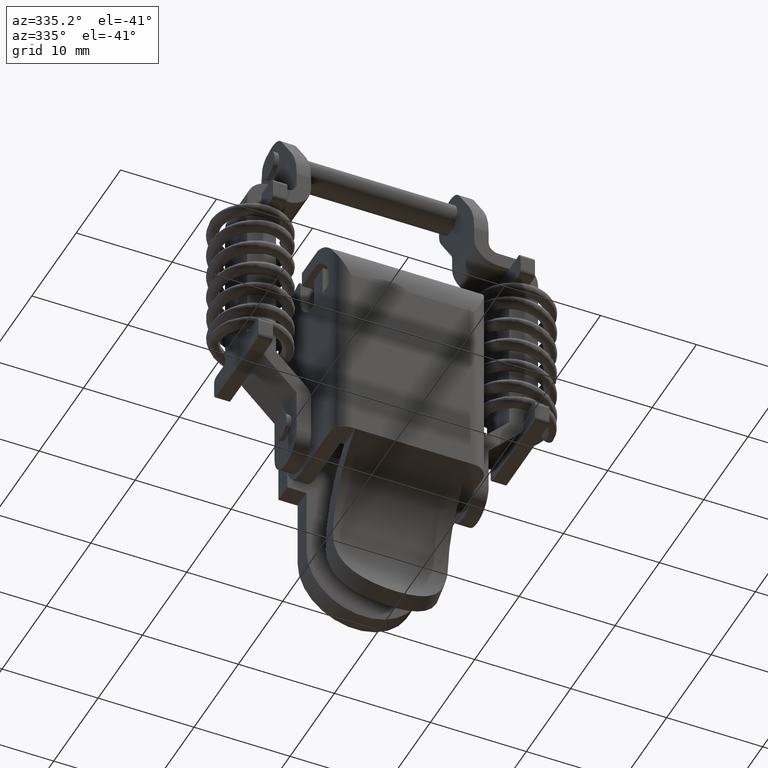
[diagram: clean part render]
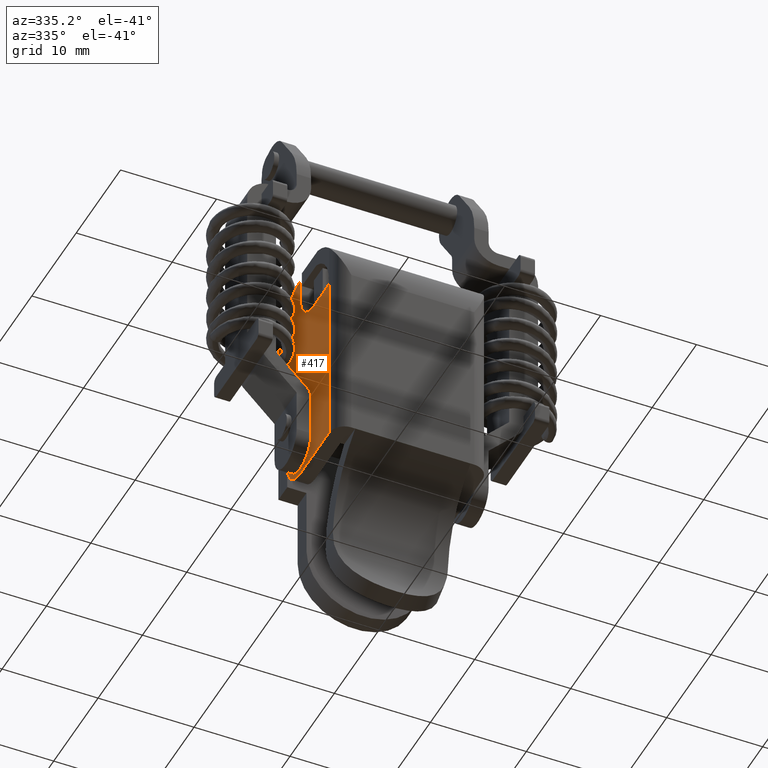
[diagram: same view with one face highlighted and labeled with its STEP entity id]
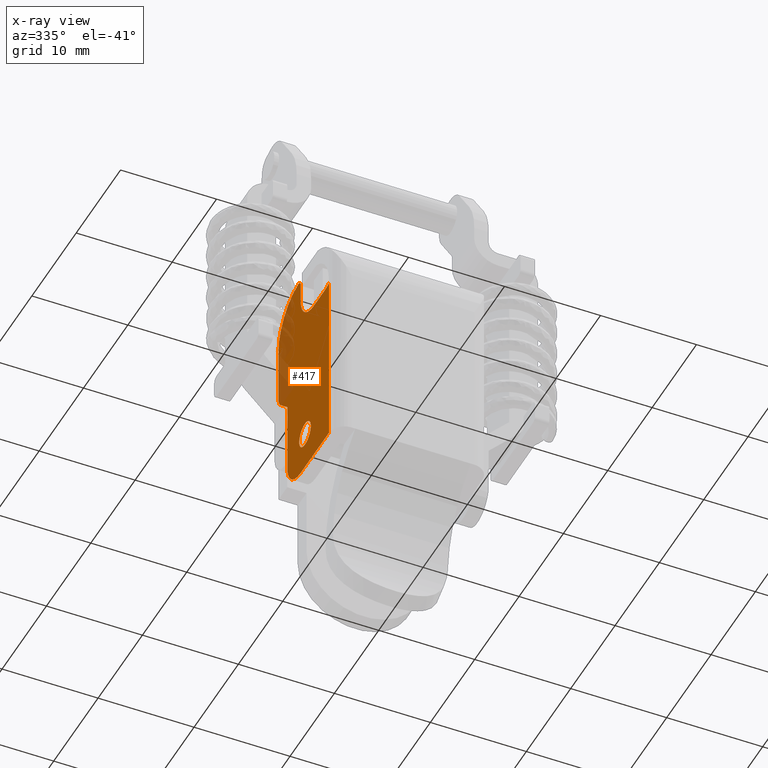
[diagram: x-ray of the same camera — body ghosted, the highlighted face saturated]
A machine part, auxiliary view. The second image highlights one B-rep face of the part: STEP entity #417.
The next image is the same camera in x-ray: the body ghosted, the highlighted face saturated — about 14% of this face is hidden behind the body in this view.
In plain terms, the highlighted planar face has unit normal (1, 0, 0).
Its self-contained STEP definition (entity closure, byte-faithful):
#417=ADVANCED_FACE('',(#2065,#2066),#2064,.F.);
#2064=PLANE('',#3498);
#2065=FACE_OUTER_BOUND('',#3499,.T.);
#2066=FACE_BOUND('',#3500,.T.);
#3495=CARTESIAN_POINT('',(-8.00000000000E+00,-7.23108641419E+00,1.74426824431E+00));
#3496=DIRECTION('',(1.00000000000E+00,0.00000000000E+00,-0.00000000000E+00));
#3497=DIRECTION('',(-0.00000000000E+00,0.00000000000E+00,-1.00000000000E+00));
#3498=AXIS2_PLACEMENT_3D('',#3495,#3496,#3497);
#3499=EDGE_LOOP('',(#6756,#6757,#6758,#6759,#6760,#6761,#6762,#6763,#6764,#6765,#6766,#6767,#6768));
#3500=EDGE_LOOP('',(#6769,#6770));
#6756=ORIENTED_EDGE('',*,*,#7485,.F.);
#6757=ORIENTED_EDGE('',*,*,#7513,.T.);
#6758=ORIENTED_EDGE('',*,*,#7488,.F.);
#6759=ORIENTED_EDGE('',*,*,#7492,.F.);
#6760=ORIENTED_EDGE('',*,*,#7495,.F.);
#6761=ORIENTED_EDGE('',*,*,#7498,.F.);
#6762=ORIENTED_EDGE('',*,*,#7461,.T.);
#6763=ORIENTED_EDGE('',*,*,#7465,.T.);
#6764=ORIENTED_EDGE('',*,*,#7468,.F.);
#6765=ORIENTED_EDGE('',*,*,#7471,.T.);
#6766=ORIENTED_EDGE('',*,*,#7474,.F.);
#6767=ORIENTED_EDGE('',*,*,#7477,.F.);
#6768=ORIENTED_EDGE('',*,*,#7480,.T.);
#6769=ORIENTED_EDGE('',*,*,#7514,.F.);
#6770=ORIENTED_EDGE('',*,*,#7515,.F.);
#7461=EDGE_CURVE('',#10293,#10294,#10295,.T.);
#7465=EDGE_CURVE('',#10294,#10321,#10322,.T.);
#7468=EDGE_CURVE('',#10341,#10321,#10342,.T.);
#7471=EDGE_CURVE('',#10341,#10361,#10362,.T.);
#7474=EDGE_CURVE('',#10381,#10361,#10382,.T.);
#7477=EDGE_CURVE('',#10401,#10381,#10402,.T.);
#7480=EDGE_CURVE('',#10401,#10421,#10422,.T.);
#7485=EDGE_CURVE('',#10448,#10421,#10455,.T.);
#7488=EDGE_CURVE('',#10473,#10474,#10475,.T.);
#7492=EDGE_CURVE('',#10501,#10473,#10502,.T.);
#7495=EDGE_CURVE('',#10521,#10501,#10522,.T.);
#7498=EDGE_CURVE('',#10293,#10521,#10541,.T.);
#7513=EDGE_CURVE('',#10448,#10474,#10641,.T.);
#7514=EDGE_CURVE('',#10647,#10648,#10649,.T.);
#7515=EDGE_CURVE('',#10648,#10647,#10655,.T.);
#10293=VERTEX_POINT('',#13122);
#10294=VERTEX_POINT('',#13123);
#10295=CIRCLE('',#13127,5.00000000000E-01);
#10321=VERTEX_POINT('',#13140);
#10322=CIRCLE('',#13144,5.00000000000E+00);
#10341=VERTEX_POINT('',#13153);
#10342=LINE('',#13154,#13155);
#10361=VERTEX_POINT('',#13164);
#10362=CIRCLE('',#13168,1.50000000000E+00);
#10381=VERTEX_POINT('',#13177);
#10382=LINE('',#13178,#13179);
#10401=VERTEX_POINT('',#13188);
#10402=LINE('',#13189,#13190);
#10421=VERTEX_POINT('',#13199);
#10422=CIRCLE('',#13203,3.00000000000E+00);
#10448=VERTEX_POINT('',#13216);
#10455=LINE('',#13221,#13222);
#10473=VERTEX_POINT('',#13230);
#10474=VERTEX_POINT('',#13231);
#10475=CIRCLE('',#13235,2.50000000000E+00);
#10501=VERTEX_POINT('',#13248);
#10502=LINE('',#13249,#13250);
#10521=VERTEX_POINT('',#13259);
#10522=CIRCLE('',#13263,3.00000000000E+00);
#10541=LINE('',#13272,#13273);
#10641=LINE('',#13331,#13332);
#10647=VERTEX_POINT('',#13334);
#10648=VERTEX_POINT('',#13335);
#10649=CIRCLE('',#13339,1.30000000000E+00);
#10655=CIRCLE('',#13343,1.30000000000E+00);
#13122=CARTESIAN_POINT('',(-8.00000000000E+00,3.08913585814E-01,-1.22786404500E+00));
#13123=CARTESIAN_POINT('',(-8.00000000000E+00,8.64469141369E-01,-7.30960050001E-01));
#13124=CARTESIAN_POINT('',(-8.00000000000E+00,8.08913585814E-01,-1.22786404500E+00));
#13125=DIRECTION('',(-1.00000000000E+00,0.00000000000E+00,0.00000000000E+00));
#13126=DIRECTION('',(0.00000000000E+00,1.11111111111E-01,9.93807990000E-01));
#13127=AXIS2_PLACEMENT_3D('',#13124,#13125,#13126);
#13140=CARTESIAN_POINT('',(-8.00000000000E+00,5.30891358581E+00,-5.70000000000E+00));
#13141=CARTESIAN_POINT('',(-8.00000000000E+00,3.08913585814E-01,-5.70000000000E+00));
#13142=DIRECTION('',(-1.00000000000E+00,-0.00000000000E+00,0.00000000000E+00));
#13143=DIRECTION('',(0.00000000000E+00,-0.00000000000E+00,1.00000000000E+00));
#13144=AXIS2_PLACEMENT_3D('',#13141,#13142,#13143);
#13153=CARTESIAN_POINT('',(-8.00000000000E+00,5.30891358581E+00,-1.16239930000E+01));
#13154=CARTESIAN_POINT('',(-8.00000000000E+00,5.30891358581E+00,-1.16239930000E+01));
#13155=VECTOR('',#13156,5.92399300000E+00);
#13156=DIRECTION('',(0.00000000000E+00,0.00000000000E+00,1.00000000000E+00));
#13164=CARTESIAN_POINT('',(-8.00000000000E+00,4.84590513712E+00,-1.27078050328E+01));
#13165=CARTESIAN_POINT('',(-8.00000000000E+00,3.80891358581E+00,-1.16239930000E+01));
#13166=DIRECTION('',(-1.00000000000E+00,-0.00000000000E+00,0.00000000000E+00));
#13167=DIRECTION('',(0.00000000000E+00,-0.00000000000E+00,1.00000000000E+00));
#13168=AXIS2_PLACEMENT_3D('',#13165,#13166,#13167);
#13177=CARTESIAN_POINT('',(-8.00000000000E+00,3.30891358581E+00,-1.41783988405E+01));
#13178=CARTESIAN_POINT('',(-8.00000000000E+00,3.30891358581E+00,-1.41783988405E+01));
#13179=VECTOR('',#13180,2.12720219439E+00);
#13180=DIRECTION('',(0.00000000000E+00,7.22541352843E-01,6.91327703359E-01));
#13188=CARTESIAN_POINT('',(-8.00000000000E+00,3.30891358581E+00,-2.18000000000E+01));
#13189=CARTESIAN_POINT('',(-8.00000000000E+00,3.30891358581E+00,-2.18000000000E+01));
#13190=VECTOR('',#13191,7.62160115953E+00);
#13191=DIRECTION('',(0.00000000000E+00,1.49746653679E-14,1.00000000000E+00));
#13199=CARTESIAN_POINT('',(-8.00000000000E+00,3.08913585813E-01,-2.48000000000E+01));
#13200=CARTESIAN_POINT('',(-8.00000000000E+00,3.08913585813E-01,-2.18000000000E+01));
#13201=DIRECTION('',(-1.00000000000E+00,-0.00000000000E+00,0.00000000000E+00));
#13202=DIRECTION('',(0.00000000000E+00,-0.00000000000E+00,1.00000000000E+00));
#13203=AXIS2_PLACEMENT_3D('',#13200,#13201,#13202);
#13216=CARTESIAN_POINT('',(-8.00000000000E+00,-6.09108641419E+00,-2.48000000000E+01));
#13221=CARTESIAN_POINT('',(-8.00000000000E+00,-6.09108641419E+00,-2.48000000000E+01));
#13222=VECTOR('',#13223,6.40000000000E+00);
#13223=DIRECTION('',(0.00000000000E+00,1.00000000000E+00,0.00000000000E+00));
#13230=CARTESIAN_POINT('',(-8.00000000000E+00,-5.13115201628E+00,-6.19928147033E+00));
#13231=CARTESIAN_POINT('',(-8.00000000000E+00,-6.09108641419E+00,-6.03238075794E+00));
#13232=CARTESIAN_POINT('',(-8.00000000000E+00,-5.19108641419E+00,-3.70000000000E+00));
#13233=DIRECTION('',(-1.00000000000E+00,-0.00000000000E+00,0.00000000000E+00));
#13234=DIRECTION('',(0.00000000000E+00,-0.00000000000E+00,1.00000000000E+00));
#13235=AXIS2_PLACEMENT_3D('',#13232,#13233,#13234);
#13248=CARTESIAN_POINT('',(-8.00000000000E+00,-2.69108641419E+00,-6.19928147033E+00));
#13249=CARTESIAN_POINT('',(-8.00000000000E+00,-2.69108641419E+00,-6.19928147033E+00));
#13250=VECTOR('',#13251,2.44006560209E+00);
#13251=DIRECTION('',(0.00000000000E+00,-1.00000000000E+00,0.00000000000E+00));
#13259=CARTESIAN_POINT('',(-8.00000000000E+00,3.08913585814E-01,-3.19928147033E+00));
#13260=CARTESIAN_POINT('',(-8.00000000000E+00,-2.69108641419E+00,-3.19928147033E+00));
#13261=DIRECTION('',(-1.00000000000E+00,-0.00000000000E+00,0.00000000000E+00));
#13262=DIRECTION('',(0.00000000000E+00,-0.00000000000E+00,1.00000000000E+00));
#13263=AXIS2_PLACEMENT_3D('',#13260,#13261,#13262);
#13272=CARTESIAN_POINT('',(-8.00000000000E+00,3.08913585814E-01,-1.22786404500E+00));
#13273=VECTOR('',#13274,1.97141742533E+00);
#13274=DIRECTION('',(0.00000000000E+00,0.00000000000E+00,-1.00000000000E+00));
#13331=CARTESIAN_POINT('',(-8.00000000000E+00,-6.09108641419E+00,-2.48000000000E+01));
#13332=VECTOR('',#13333,1.87676192421E+01);
#13333=DIRECTION('',(0.00000000000E+00,0.00000000000E+00,1.00000000000E+00));
#13334=CARTESIAN_POINT('',(-8.00000000000E+00,-6.91086414186E-01,-1.94034601670E+01));
#13335=CARTESIAN_POINT('',(-8.00000000000E+00,-6.91086414186E-01,-2.20034601670E+01));
#13336=CARTESIAN_POINT('',(-8.00000000000E+00,-6.91086414186E-01,-2.07034601670E+01));
#13337=DIRECTION('',(-1.00000000000E+00,-0.00000000000E+00,0.00000000000E+00));
#13338=DIRECTION('',(0.00000000000E+00,-1.22460635382E-16,-1.00000000000E+00));
#13339=AXIS2_PLACEMENT_3D('',#13336,#13337,#13338);
#13340=CARTESIAN_POINT('',(-8.00000000000E+00,-6.91086414186E-01,-2.07034601670E+01));
#13341=DIRECTION('',(-1.00000000000E+00,-0.00000000000E+00,0.00000000000E+00));
#13342=DIRECTION('',(0.00000000000E+00,-1.22460635382E-16,-1.00000000000E+00));
#13343=AXIS2_PLACEMENT_3D('',#13340,#13341,#13342);